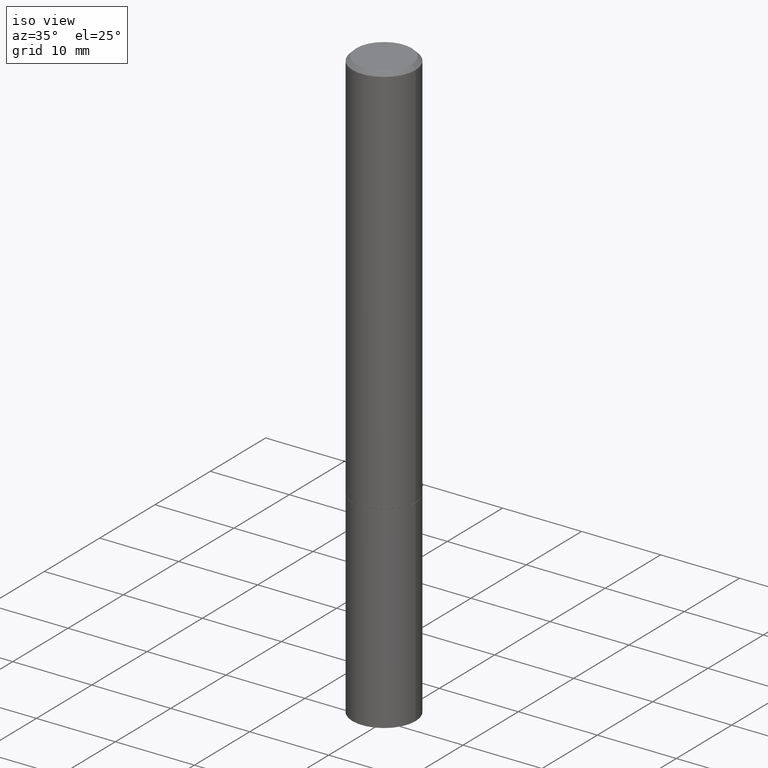
[diagram: clean part render]
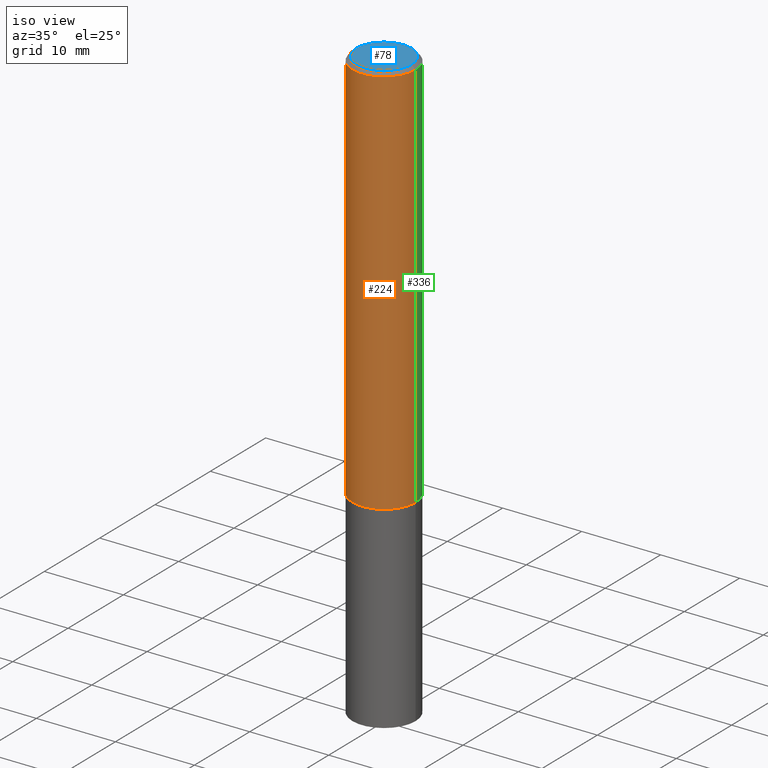
[diagram: same view with three faces highlighted in distinct colors, each labeled with its STEP entity id]
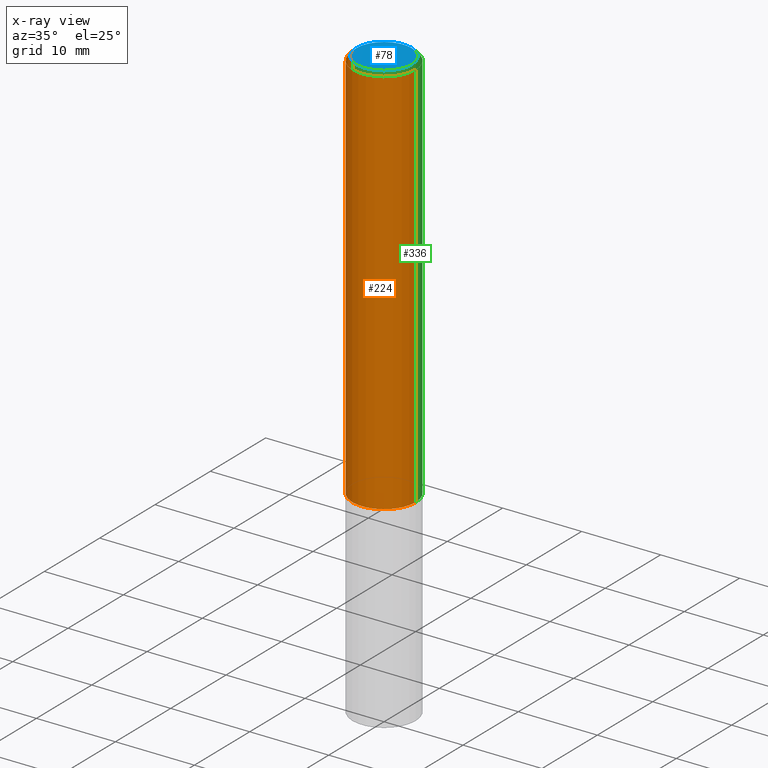
[diagram: x-ray of the same camera — body ghosted, the three highlighted faces saturated]
A machine part, iso view with three faces highlighted in distinct colors.
The next image is the same camera in x-ray (body ghosted, the three faces saturated) — at least one of them is partly hidden behind the body in this view.
Their STEP definitions:

[orange] entity #224 — the highlighted cylindrical surface (partial cylindrical patch) has radius 4.0005 mm, axis along (-0, 0, 1).
#2 = ORIENTED_EDGE ( 'NONE', *, *, #163, .T. ) ;
#9 = CARTESIAN_POINT ( 'NONE',  ( 4.811459876169255671E-29, -6.869489534173887122E-15, -1.967499999999999805 ) ) ;
#32 = CARTESIAN_POINT ( 'NONE',  ( -0.1575000000000000011, -2.350554771653214846E-15, -1.967499999999999805 ) ) ;
#35 = ORIENTED_EDGE ( 'NONE', *, *, #56, .T. ) ;
#51 = DIRECTION ( 'NONE',  ( -2.445468806185136877E-29, 3.491481338843145188E-15, 1.000000000000000000 ) ) ;
#56 = EDGE_CURVE ( 'NONE', #151, #287, #112, .T. ) ;
#57 = AXIS2_PLACEMENT_3D ( 'NONE', #99, #260, #158 ) ;
#62 = FACE_OUTER_BOUND ( 'NONE', #275, .T. ) ;
#73 = VERTEX_POINT ( 'NONE', #196 ) ;
#74 = CIRCLE ( 'NONE', #145, 0.1574999999999997513 ) ;
#96 = DIRECTION ( 'NONE',  ( -2.445468806185136597E-29, 3.491481338843145583E-15, 1.000000000000000000 ) ) ;
#99 = CARTESIAN_POINT ( 'NONE',  ( 0.000000000000000000, 0.000000000000000000, 0.000000000000000000 ) ) ;
#101 = VECTOR ( 'NONE', #150, 39.37007874015748143 ) ;
#104 = CARTESIAN_POINT ( 'NONE',  ( -0.1574999999999998901, 1.119104808822157012E-15, -7.747322767151471379E-30 ) ) ;
#112 = LINE ( 'NONE', #223, #272 ) ;
#125 = VERTEX_POINT ( 'NONE', #32 ) ;
#126 = CYLINDRICAL_SURFACE ( 'NONE', #57, 0.1574999999999998901 ) ;
#145 = AXIS2_PLACEMENT_3D ( 'NONE', #352, #96, #326 ) ;
#147 = EDGE_CURVE ( 'NONE', #125, #73, #292, .T. ) ;
#150 = DIRECTION ( 'NONE',  ( -2.445468806185136877E-29, 3.491481338843145188E-15, 1.000000000000000000 ) ) ;
#151 = VERTEX_POINT ( 'NONE', #213 ) ;
#152 = CIRCLE ( 'NONE', #226, 0.1575000000000000011 ) ;
#158 = DIRECTION ( 'NONE',  ( 1.000000000000000000, -6.982962677686266711E-15, 4.876176775795935793E-29 ) ) ;
#163 = EDGE_CURVE ( 'NONE', #125, #151, #152, .T. ) ;
#168 = ORIENTED_EDGE ( 'NONE', *, *, #147, .F. ) ;
#196 = CARTESIAN_POINT ( 'NONE',  ( -0.1574999999999997513, 1.029986994958722210E-15, -0.02000000000000003511 ) ) ;
#213 = CARTESIAN_POINT ( 'NONE',  ( 0.1575000000000000011, -7.969306155909475391E-15, -1.967499999999999805 ) ) ;
#223 = CARTESIAN_POINT ( 'NONE',  ( 0.1574999999999998901, -1.099816621735586297E-15, 7.679978421878593829E-30 ) ) ;
#224 = ADVANCED_FACE ( 'NONE', ( #62 ), #126, .T. ) ;
#226 = AXIS2_PLACEMENT_3D ( 'NONE', #9, #270, #356 ) ;
#249 = CARTESIAN_POINT ( 'NONE',  ( 0.1574999999999997513, -1.150358061425877697E-15, -0.02000000000000003511 ) ) ;
#259 = EDGE_CURVE ( 'NONE', #73, #287, #74, .T. ) ;
#260 = DIRECTION ( 'NONE',  ( -2.445468806185136597E-29, 3.491481338843145583E-15, 1.000000000000000000 ) ) ;
#270 = DIRECTION ( 'NONE',  ( -2.445468806185136597E-29, 3.491481338843145583E-15, 1.000000000000000000 ) ) ;
#272 = VECTOR ( 'NONE', #51, 39.37007874015748143 ) ;
#275 = EDGE_LOOP ( 'NONE', ( #168, #2, #35, #305 ) ) ;
#287 = VERTEX_POINT ( 'NONE', #249 ) ;
#292 = LINE ( 'NONE', #104, #101 ) ;
#305 = ORIENTED_EDGE ( 'NONE', *, *, #259, .F. ) ;
#326 = DIRECTION ( 'NONE',  ( 1.000000000000000000, -6.982962677686266711E-15, 0.000000000000000000 ) ) ;
#352 = CARTESIAN_POINT ( 'NONE',  ( 4.890937612370281041E-31, -6.982962677686302702E-17, -0.02000000000000003511 ) ) ;
#356 = DIRECTION ( 'NONE',  ( 1.000000000000000000, -6.982962677686268288E-15, 0.000000000000000000 ) ) ;

[blue] entity #78 — the highlighted planar face has unit normal (0, -0, -1).
#13 = VERTEX_POINT ( 'NONE', #139 ) ;
#21 = ORIENTED_EDGE ( 'NONE', *, *, #281, .T. ) ;
#24 = DIRECTION ( 'NONE',  ( -2.445468806185136597E-29, 3.491481338843145583E-15, 1.000000000000000000 ) ) ;
#28 = EDGE_LOOP ( 'NONE', ( #21, #135 ) ) ;
#40 = CARTESIAN_POINT ( 'NONE',  ( -2.087702828670435750E-46, 2.980686340760889474E-32, 8.537024980200807150E-18 ) ) ;
#64 = CIRCLE ( 'NONE', #278, 0.1374999999999997613 ) ;
#77 = CARTESIAN_POINT ( 'NONE',  ( -2.087702828670435750E-46, 2.980686340760889474E-32, 8.537024980200807150E-18 ) ) ;
#78 = ADVANCED_FACE ( 'NONE', ( #311 ), #113, .F. ) ;
#85 = DIRECTION ( 'NONE',  ( -1.000000000000000000, 6.982962677686265922E-15, -4.876176775795935793E-29 ) ) ;
#100 = VERTEX_POINT ( 'NONE', #332 ) ;
#110 = CIRCLE ( 'NONE', #119, 0.1374999999999997613 ) ;
#113 = PLANE ( 'NONE',  #132 ) ;
#118 = DIRECTION ( 'NONE',  ( 1.000000000000000000, -6.982962677686265922E-15, 4.876173381029109010E-29 ) ) ;
#119 = AXIS2_PLACEMENT_3D ( 'NONE', #77, #24, #247 ) ;
#132 = AXIS2_PLACEMENT_3D ( 'NONE', #225, #345, #85 ) ;
#135 = ORIENTED_EDGE ( 'NONE', *, *, #198, .T. ) ;
#139 = CARTESIAN_POINT ( 'NONE',  ( -0.1374999999999997613, 9.950721815702909552E-16, 8.537024980193970869E-18 ) ) ;
#198 = EDGE_CURVE ( 'NONE', #100, #13, #64, .T. ) ;
#211 = DIRECTION ( 'NONE',  ( -2.445468806185136597E-29, 3.491481338843145583E-15, 1.000000000000000000 ) ) ;
#225 = CARTESIAN_POINT ( 'NONE',  ( 9.601573681818598978E-16, 0.1374999999999997613, -4.758101716008312971E-16 ) ) ;
#247 = DIRECTION ( 'NONE',  ( 1.000000000000000000, -6.982962677686265922E-15, 4.876173381029109010E-29 ) ) ;
#278 = AXIS2_PLACEMENT_3D ( 'NONE', #40, #211, #118 ) ;
#281 = EDGE_CURVE ( 'NONE', #13, #100, #110, .T. ) ;
#311 = FACE_OUTER_BOUND ( 'NONE', #28, .T. ) ;
#332 = CARTESIAN_POINT ( 'NONE',  ( 0.1374999999999997613, -1.046838268059730717E-15, 8.537024980207825239E-18 ) ) ;
#345 = DIRECTION ( 'NONE',  ( 2.438088387897960049E-29, -3.491481338843145188E-15, -1.000000000000000000 ) ) ;

[green] entity #336 — the highlighted cylindrical surface (partial cylindrical patch) has radius 4.0005 mm, axis along (-0, 0, 1).
#32 = CARTESIAN_POINT ( 'NONE',  ( -0.1575000000000000011, -2.350554771653214846E-15, -1.967499999999999805 ) ) ;
#44 = DIRECTION ( 'NONE',  ( 1.000000000000000000, -6.982962677686266711E-15, 0.000000000000000000 ) ) ;
#47 = CIRCLE ( 'NONE', #251, 0.1575000000000000011 ) ;
#48 = CIRCLE ( 'NONE', #87, 0.1574999999999997513 ) ;
#51 = DIRECTION ( 'NONE',  ( -2.445468806185136877E-29, 3.491481338843145188E-15, 1.000000000000000000 ) ) ;
#56 = EDGE_CURVE ( 'NONE', #151, #287, #112, .T. ) ;
#73 = VERTEX_POINT ( 'NONE', #196 ) ;
#80 = DIRECTION ( 'NONE',  ( -2.445468806185136597E-29, 3.491481338843145583E-15, 1.000000000000000000 ) ) ;
#87 = AXIS2_PLACEMENT_3D ( 'NONE', #304, #107, #44 ) ;
#101 = VECTOR ( 'NONE', #150, 39.37007874015748143 ) ;
#104 = CARTESIAN_POINT ( 'NONE',  ( -0.1574999999999998901, 1.119104808822157012E-15, -7.747322767151471379E-30 ) ) ;
#107 = DIRECTION ( 'NONE',  ( -2.445468806185136597E-29, 3.491481338843145583E-15, 1.000000000000000000 ) ) ;
#109 = CYLINDRICAL_SURFACE ( 'NONE', #146, 0.1574999999999998901 ) ;
#112 = LINE ( 'NONE', #223, #272 ) ;
#125 = VERTEX_POINT ( 'NONE', #32 ) ;
#130 = ORIENTED_EDGE ( 'NONE', *, *, #147, .T. ) ;
#136 = EDGE_CURVE ( 'NONE', #151, #125, #47, .T. ) ;
#146 = AXIS2_PLACEMENT_3D ( 'NONE', #220, #80, #194 ) ;
#147 = EDGE_CURVE ( 'NONE', #125, #73, #292, .T. ) ;
#150 = DIRECTION ( 'NONE',  ( -2.445468806185136877E-29, 3.491481338843145188E-15, 1.000000000000000000 ) ) ;
#151 = VERTEX_POINT ( 'NONE', #213 ) ;
#154 = ORIENTED_EDGE ( 'NONE', *, *, #56, .F. ) ;
#182 = DIRECTION ( 'NONE',  ( 1.000000000000000000, -6.982962677686268288E-15, 0.000000000000000000 ) ) ;
#189 = ORIENTED_EDGE ( 'NONE', *, *, #320, .F. ) ;
#194 = DIRECTION ( 'NONE',  ( 1.000000000000000000, -6.982962677686266711E-15, 4.876176775795935793E-29 ) ) ;
#196 = CARTESIAN_POINT ( 'NONE',  ( -0.1574999999999997513, 1.029986994958722210E-15, -0.02000000000000003511 ) ) ;
#213 = CARTESIAN_POINT ( 'NONE',  ( 0.1575000000000000011, -7.969306155909475391E-15, -1.967499999999999805 ) ) ;
#219 = FACE_OUTER_BOUND ( 'NONE', #246, .T. ) ;
#220 = CARTESIAN_POINT ( 'NONE',  ( 0.000000000000000000, 0.000000000000000000, 0.000000000000000000 ) ) ;
#223 = CARTESIAN_POINT ( 'NONE',  ( 0.1574999999999998901, -1.099816621735586297E-15, 7.679978421878593829E-30 ) ) ;
#246 = EDGE_LOOP ( 'NONE', ( #315, #130, #189, #154 ) ) ;
#249 = CARTESIAN_POINT ( 'NONE',  ( 0.1574999999999997513, -1.150358061425877697E-15, -0.02000000000000003511 ) ) ;
#251 = AXIS2_PLACEMENT_3D ( 'NONE', #328, #258, #182 ) ;
#258 = DIRECTION ( 'NONE',  ( -2.445468806185136597E-29, 3.491481338843145583E-15, 1.000000000000000000 ) ) ;
#272 = VECTOR ( 'NONE', #51, 39.37007874015748143 ) ;
#287 = VERTEX_POINT ( 'NONE', #249 ) ;
#292 = LINE ( 'NONE', #104, #101 ) ;
#304 = CARTESIAN_POINT ( 'NONE',  ( 4.890937612370281041E-31, -6.982962677686302702E-17, -0.02000000000000003511 ) ) ;
#315 = ORIENTED_EDGE ( 'NONE', *, *, #136, .T. ) ;
#320 = EDGE_CURVE ( 'NONE', #287, #73, #48, .T. ) ;
#328 = CARTESIAN_POINT ( 'NONE',  ( 4.811459876169255671E-29, -6.869489534173887122E-15, -1.967499999999999805 ) ) ;
#336 = ADVANCED_FACE ( 'NONE', ( #219 ), #109, .T. ) ;